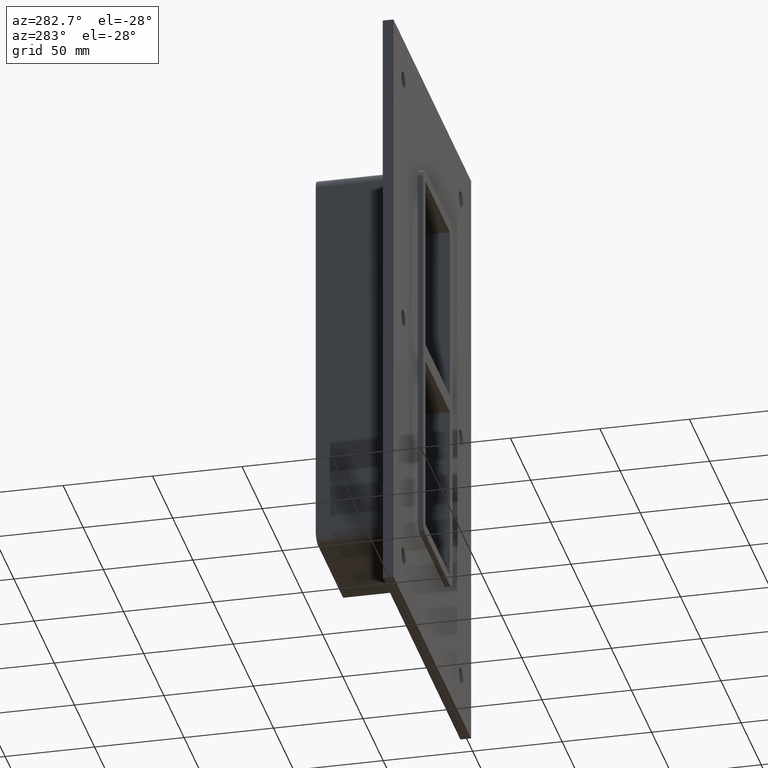
[diagram: clean part render]
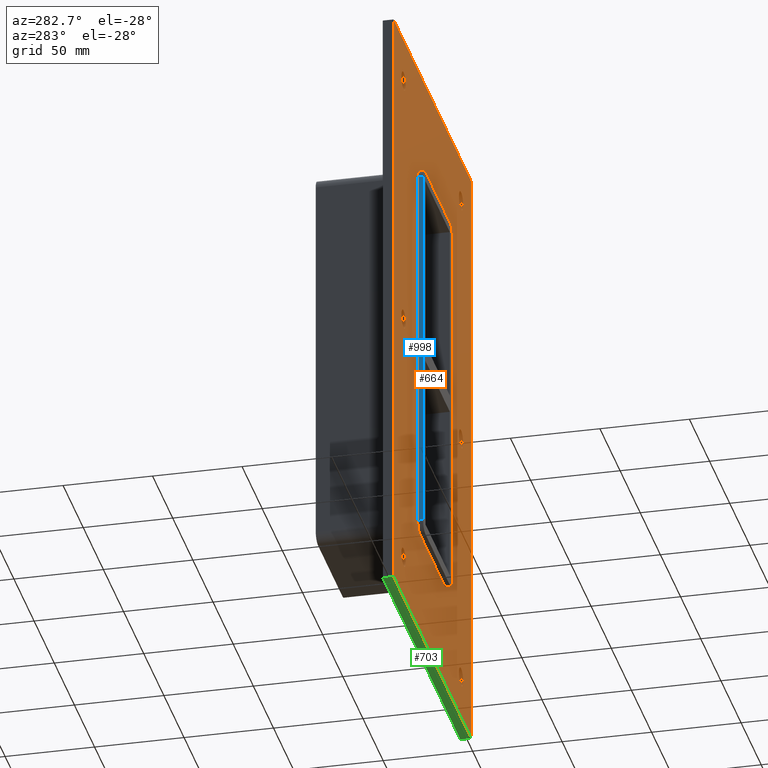
[diagram: same view with three faces highlighted in distinct colors, each labeled with its STEP entity id]
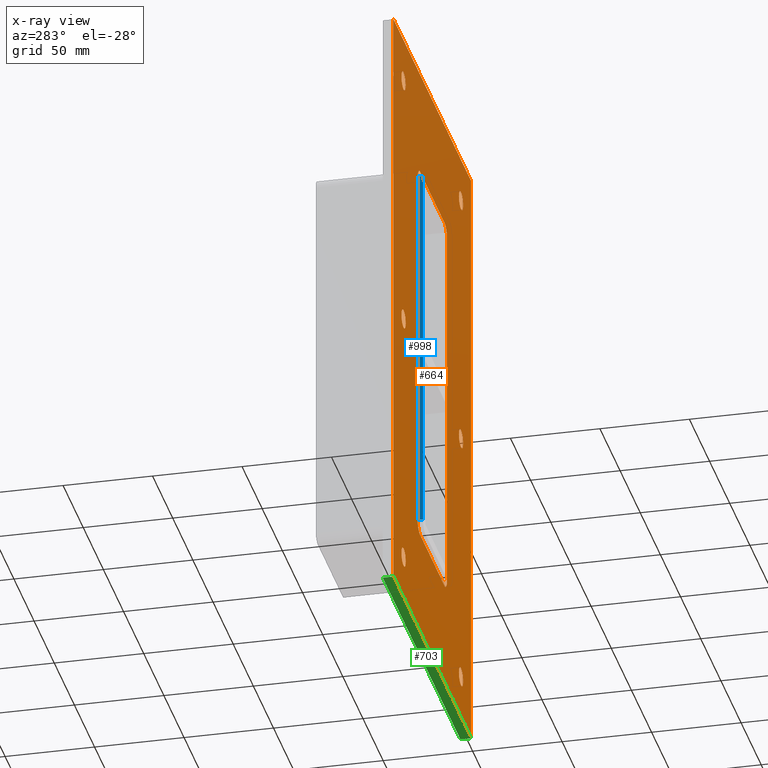
[diagram: x-ray of the same camera — body ghosted, the three highlighted faces saturated]
A machine part, auxiliary view with three faces highlighted in distinct colors.
The next image is the same camera in x-ray (body ghosted, the three faces saturated) — at least one of them is partly hidden behind the body in this view.
Their STEP definitions:

[orange] entity #664 — the highlighted planar face has unit normal (0, 1, 0).
#84=CARTESIAN_POINT('',(-66.000000000000071,0.0,-147.0));
#85=VERTEX_POINT('',#84);
#86=CARTESIAN_POINT('',(-71.250000000000071,0.0,-147.0));
#87=DIRECTION('',(0.0,1.0,0.0));
#88=DIRECTION('',(1.0,0.0,0.0));
#89=AXIS2_PLACEMENT_3D('',#86,#87,#88);
#90=CIRCLE('',#89,5.25);
#91=EDGE_CURVE('',#85,#85,#90,.T.);
#112=CARTESIAN_POINT('',(76.499999999999929,0.0,1.776357E-014));
#113=VERTEX_POINT('',#112);
#114=CARTESIAN_POINT('',(71.249999999999929,0.0,1.776357E-014));
#115=DIRECTION('',(0.0,1.0,0.0));
#116=DIRECTION('',(1.0,0.0,0.0));
#117=AXIS2_PLACEMENT_3D('',#114,#115,#116);
#118=CIRCLE('',#117,5.25);
#119=EDGE_CURVE('',#113,#113,#118,.T.);
#140=CARTESIAN_POINT('',(-66.000000000000071,0.0,1.776357E-014));
#141=VERTEX_POINT('',#140);
#142=CARTESIAN_POINT('',(-71.250000000000071,0.0,1.776357E-014));
#143=DIRECTION('',(0.0,1.0,0.0));
#144=DIRECTION('',(1.0,0.0,0.0));
#145=AXIS2_PLACEMENT_3D('',#142,#143,#144);
#146=CIRCLE('',#145,5.25);
#147=EDGE_CURVE('',#141,#141,#146,.T.);
#168=CARTESIAN_POINT('',(76.499999999999929,0.0,-147.0));
#169=VERTEX_POINT('',#168);
#170=CARTESIAN_POINT('',(71.249999999999929,0.0,-147.0));
#171=DIRECTION('',(0.0,1.0,0.0));
#172=DIRECTION('',(1.0,0.0,0.0));
#173=AXIS2_PLACEMENT_3D('',#170,#171,#172);
#174=CIRCLE('',#173,5.25);
#175=EDGE_CURVE('',#169,#169,#174,.T.);
#196=CARTESIAN_POINT('',(-66.000000000000071,0.0,147.00000000000003));
#197=VERTEX_POINT('',#196);
#198=CARTESIAN_POINT('',(-71.250000000000071,0.0,147.00000000000003));
#199=DIRECTION('',(0.0,1.0,0.0));
#200=DIRECTION('',(1.0,0.0,0.0));
#201=AXIS2_PLACEMENT_3D('',#198,#199,#200);
#202=CIRCLE('',#201,5.25);
#203=EDGE_CURVE('',#197,#197,#202,.T.);
#224=CARTESIAN_POINT('',(76.499999999999929,0.0,147.00000000000003));
#225=VERTEX_POINT('',#224);
#226=CARTESIAN_POINT('',(71.249999999999929,0.0,147.00000000000003));
#227=DIRECTION('',(0.0,1.0,0.0));
#228=DIRECTION('',(1.0,0.0,0.0));
#229=AXIS2_PLACEMENT_3D('',#226,#227,#228);
#230=CIRCLE('',#229,5.25);
#231=EDGE_CURVE('',#225,#225,#230,.T.);
#537=CARTESIAN_POINT('',(7.946424E-015,0.0,-1.536309E-014));
#538=DIRECTION('',(0.0,1.0,0.0));
#539=DIRECTION('',(0.0,0.0,1.0));
#540=AXIS2_PLACEMENT_3D('',#537,#538,#539);
#541=PLANE('',#540);
#542=CARTESIAN_POINT('',(-96.249999999999972,0.0,171.99999999999994));
#543=VERTEX_POINT('',#542);
#544=CARTESIAN_POINT('',(96.249999999999986,0.0,171.99999999999994));
#545=VERTEX_POINT('',#544);
#546=CARTESIAN_POINT('',(-96.249999999999972,0.0,171.99999999999994));
#547=DIRECTION('',(1.0,0.0,0.0));
#548=VECTOR('',#547,192.49999999999994);
#549=LINE('',#546,#548);
#550=EDGE_CURVE('',#543,#545,#549,.T.);
#551=ORIENTED_EDGE('',*,*,#550,.F.);
#552=CARTESIAN_POINT('',(-96.249999999999972,0.0,-172.0));
#553=VERTEX_POINT('',#552);
#554=CARTESIAN_POINT('',(-96.249999999999972,0.0,-172.0));
#555=DIRECTION('',(0.0,0.0,1.0));
#556=VECTOR('',#555,343.99999999999989);
#557=LINE('',#554,#556);
#558=EDGE_CURVE('',#553,#543,#557,.T.);
#559=ORIENTED_EDGE('',*,*,#558,.F.);
#560=CARTESIAN_POINT('',(96.249999999999986,0.0,-172.0));
#561=VERTEX_POINT('',#560);
#562=CARTESIAN_POINT('',(96.249999999999986,0.0,-172.0));
#563=DIRECTION('',(-1.0,0.0,0.0));
#564=VECTOR('',#563,192.49999999999994);
#565=LINE('',#562,#564);
#566=EDGE_CURVE('',#561,#553,#565,.T.);
#567=ORIENTED_EDGE('',*,*,#566,.F.);
#568=CARTESIAN_POINT('',(96.249999999999986,0.0,171.99999999999994));
#569=DIRECTION('',(0.0,0.0,-1.0));
#570=VECTOR('',#569,343.99999999999989);
#571=LINE('',#568,#570);
#572=EDGE_CURVE('',#545,#561,#571,.T.);
#573=ORIENTED_EDGE('',*,*,#572,.F.);
#574=EDGE_LOOP('',(#551,#559,#567,#573));
#575=FACE_OUTER_BOUND('',#574,.T.);
#576=ORIENTED_EDGE('',*,*,#91,.T.);
#577=EDGE_LOOP('',(#576));
#578=FACE_BOUND('',#577,.T.);
#579=ORIENTED_EDGE('',*,*,#119,.T.);
#580=EDGE_LOOP('',(#579));
#581=FACE_BOUND('',#580,.T.);
#582=ORIENTED_EDGE('',*,*,#147,.T.);
#583=EDGE_LOOP('',(#582));
#584=FACE_BOUND('',#583,.T.);
#585=ORIENTED_EDGE('',*,*,#175,.T.);
#586=EDGE_LOOP('',(#585));
#587=FACE_BOUND('',#586,.T.);
#588=ORIENTED_EDGE('',*,*,#203,.T.);
#589=EDGE_LOOP('',(#588));
#590=FACE_BOUND('',#589,.T.);
#591=ORIENTED_EDGE('',*,*,#231,.T.);
#592=EDGE_LOOP('',(#591));
#593=FACE_BOUND('',#592,.T.);
#594=CARTESIAN_POINT('',(-30.250000000000004,0.0,112.00000000000003));
#595=VERTEX_POINT('',#594);
#596=CARTESIAN_POINT('',(-36.25,0.0,106.00000000000001));
#597=VERTEX_POINT('',#596);
#598=CARTESIAN_POINT('',(-30.250000000000004,0.0,106.00000000000001));
#599=DIRECTION('',(0.0,-1.0,0.0));
#600=DIRECTION('',(-0.707106781186546,0.0,0.707106781186549));
#601=AXIS2_PLACEMENT_3D('',#598,#599,#600);
#602=CIRCLE('',#601,6.000000000000001);
#603=EDGE_CURVE('',#595,#597,#602,.T.);
#604=ORIENTED_EDGE('',*,*,#603,.F.);
#605=CARTESIAN_POINT('',(30.250000000000004,0.0,112.00000000000003));
#606=VERTEX_POINT('',#605);
#607=CARTESIAN_POINT('',(30.250000000000004,0.0,112.00000000000003));
#608=DIRECTION('',(-1.0,0.0,0.0));
#609=VECTOR('',#608,60.500000000000007);
#610=LINE('',#607,#609);
#611=EDGE_CURVE('',#606,#595,#610,.T.);
#612=ORIENTED_EDGE('',*,*,#611,.F.);
#613=CARTESIAN_POINT('',(36.25,0.0,106.00000000000003));
#614=VERTEX_POINT('',#613);
#615=CARTESIAN_POINT('',(30.250000000000004,0.0,106.00000000000003));
#616=DIRECTION('',(0.0,-1.0,0.0));
#617=DIRECTION('',(0.707106781186548,0.0,0.707106781186547));
#618=AXIS2_PLACEMENT_3D('',#615,#616,#617);
#619=CIRCLE('',#618,6.0);
#620=EDGE_CURVE('',#614,#606,#619,.T.);
#621=ORIENTED_EDGE('',*,*,#620,.F.);
#622=CARTESIAN_POINT('',(36.25,0.0,-106.00000000000001));
#623=VERTEX_POINT('',#622);
#624=CARTESIAN_POINT('',(36.25,0.0,-106.00000000000003));
#625=DIRECTION('',(0.0,0.0,1.0));
#626=VECTOR('',#625,212.00000000000006);
#627=LINE('',#624,#626);
#628=EDGE_CURVE('',#623,#614,#627,.T.);
#629=ORIENTED_EDGE('',*,*,#628,.F.);
#630=CARTESIAN_POINT('',(30.250000000000004,0.0,-112.00000000000003));
#631=VERTEX_POINT('',#630);
#632=CARTESIAN_POINT('',(30.250000000000004,0.0,-106.00000000000001));
#633=DIRECTION('',(0.0,-1.0,0.0));
#634=DIRECTION('',(0.707106781186546,0.0,-0.707106781186549));
#635=AXIS2_PLACEMENT_3D('',#632,#633,#634);
#636=CIRCLE('',#635,6.000000000000001);
#637=EDGE_CURVE('',#631,#623,#636,.T.);
#638=ORIENTED_EDGE('',*,*,#637,.F.);
#639=CARTESIAN_POINT('',(-30.250000000000004,0.0,-112.00000000000003));
#640=VERTEX_POINT('',#639);
#641=CARTESIAN_POINT('',(-30.249999999999996,0.0,-112.00000000000003));
#642=DIRECTION('',(1.0,0.0,0.0));
#643=VECTOR('',#642,60.5);
#644=LINE('',#641,#643);
#645=EDGE_CURVE('',#640,#631,#644,.T.);
#646=ORIENTED_EDGE('',*,*,#645,.F.);
#647=CARTESIAN_POINT('',(-36.25,0.0,-106.00000000000001));
#648=VERTEX_POINT('',#647);
#649=CARTESIAN_POINT('',(-30.250000000000004,0.0,-106.00000000000001));
#650=DIRECTION('',(0.0,-1.0,0.0));
#651=DIRECTION('',(-0.707106781186546,0.0,-0.707106781186549));
#652=AXIS2_PLACEMENT_3D('',#649,#650,#651);
#653=CIRCLE('',#652,6.000000000000001);
#654=EDGE_CURVE('',#648,#640,#653,.T.);
#655=ORIENTED_EDGE('',*,*,#654,.F.);
#656=CARTESIAN_POINT('',(-36.25,0.0,106.0));
#657=DIRECTION('',(0.0,0.0,-1.0));
#658=VECTOR('',#657,212.0);
#659=LINE('',#656,#658);
#660=EDGE_CURVE('',#597,#648,#659,.T.);
#661=ORIENTED_EDGE('',*,*,#660,.F.);
#662=EDGE_LOOP('',(#604,#612,#621,#629,#638,#646,#655,#661));
#663=FACE_BOUND('',#662,.T.);
#664=ADVANCED_FACE('',(#575,#578,#581,#584,#587,#590,#593,#663),#541,.F.);

[blue] entity #998 — the highlighted planar face has unit normal (-1, 0, 0).
#596=CARTESIAN_POINT('',(-36.25,0.0,106.00000000000001));
#597=VERTEX_POINT('',#596);
#647=CARTESIAN_POINT('',(-36.25,0.0,-106.00000000000001));
#648=VERTEX_POINT('',#647);
#656=CARTESIAN_POINT('',(-36.25,0.0,106.0));
#657=DIRECTION('',(0.0,0.0,-1.0));
#658=VECTOR('',#657,212.0);
#659=LINE('',#656,#658);
#660=EDGE_CURVE('',#597,#648,#659,.T.);
#907=CARTESIAN_POINT('',(-36.25,-3.0,-106.00000000000001));
#908=VERTEX_POINT('',#907);
#916=CARTESIAN_POINT('',(-36.25,-3.0,-106.00000000000001));
#917=DIRECTION('',(0.0,1.0,0.0));
#918=VECTOR('',#917,3.0);
#919=LINE('',#916,#918);
#920=EDGE_CURVE('',#908,#648,#919,.T.);
#975=CARTESIAN_POINT('',(-36.25,0.0,-112.00000000000003));
#976=DIRECTION('',(-1.0,0.0,0.0));
#977=DIRECTION('',(0.0,0.0,1.0));
#978=AXIS2_PLACEMENT_3D('',#975,#976,#977);
#979=PLANE('',#978);
#980=ORIENTED_EDGE('',*,*,#660,.T.);
#981=ORIENTED_EDGE('',*,*,#920,.F.);
#982=CARTESIAN_POINT('',(-36.25,-3.0,106.00000000000001));
#983=VERTEX_POINT('',#982);
#984=CARTESIAN_POINT('',(-36.25,-3.0,106.00000000000003));
#985=DIRECTION('',(0.0,0.0,-1.0));
#986=VECTOR('',#985,212.00000000000006);
#987=LINE('',#984,#986);
#988=EDGE_CURVE('',#983,#908,#987,.T.);
#989=ORIENTED_EDGE('',*,*,#988,.F.);
#990=CARTESIAN_POINT('',(-36.25,0.0,106.00000000000001));
#991=DIRECTION('',(0.0,-1.0,0.0));
#992=VECTOR('',#991,3.0);
#993=LINE('',#990,#992);
#994=EDGE_CURVE('',#597,#983,#993,.T.);
#995=ORIENTED_EDGE('',*,*,#994,.F.);
#996=EDGE_LOOP('',(#980,#981,#989,#995));
#997=FACE_OUTER_BOUND('',#996,.T.);
#998=ADVANCED_FACE('',(#997),#979,.T.);

[green] entity #703 — the highlighted planar face has unit normal (0, 0, -1).
#424=CARTESIAN_POINT('',(96.249999999999972,6.000000000000001,-171.99999999999994));
#425=VERTEX_POINT('',#424);
#432=CARTESIAN_POINT('',(-96.249999999999972,6.000000000000001,-171.99999999999994));
#433=VERTEX_POINT('',#432);
#434=CARTESIAN_POINT('',(96.249999999999986,6.000000000000001,-172.0));
#435=DIRECTION('',(-1.0,0.0,0.0));
#436=VECTOR('',#435,192.49999999999994);
#437=LINE('',#434,#436);
#438=EDGE_CURVE('',#425,#433,#437,.T.);
#552=CARTESIAN_POINT('',(-96.249999999999972,0.0,-172.0));
#553=VERTEX_POINT('',#552);
#560=CARTESIAN_POINT('',(96.249999999999986,0.0,-172.0));
#561=VERTEX_POINT('',#560);
#562=CARTESIAN_POINT('',(96.249999999999986,0.0,-172.0));
#563=DIRECTION('',(-1.0,0.0,0.0));
#564=VECTOR('',#563,192.49999999999994);
#565=LINE('',#562,#564);
#566=EDGE_CURVE('',#561,#553,#565,.T.);
#678=CARTESIAN_POINT('',(-96.249999999999972,0.0,-172.0));
#679=DIRECTION('',(0.0,1.0,0.0));
#680=VECTOR('',#679,6.000000000000001);
#681=LINE('',#678,#680);
#682=EDGE_CURVE('',#553,#433,#681,.T.);
#687=CARTESIAN_POINT('',(96.249999999999986,0.0,-172.0));
#688=DIRECTION('',(0.0,0.0,-1.0));
#689=DIRECTION('',(-1.0,0.0,0.0));
#690=AXIS2_PLACEMENT_3D('',#687,#688,#689);
#691=PLANE('',#690);
#692=ORIENTED_EDGE('',*,*,#566,.T.);
#693=ORIENTED_EDGE('',*,*,#682,.T.);
#694=ORIENTED_EDGE('',*,*,#438,.F.);
#695=CARTESIAN_POINT('',(96.249999999999986,0.0,-172.0));
#696=DIRECTION('',(0.0,1.0,0.0));
#697=VECTOR('',#696,6.000000000000001);
#698=LINE('',#695,#697);
#699=EDGE_CURVE('',#561,#425,#698,.T.);
#700=ORIENTED_EDGE('',*,*,#699,.F.);
#701=EDGE_LOOP('',(#692,#693,#694,#700));
#702=FACE_OUTER_BOUND('',#701,.T.);
#703=ADVANCED_FACE('',(#702),#691,.T.);